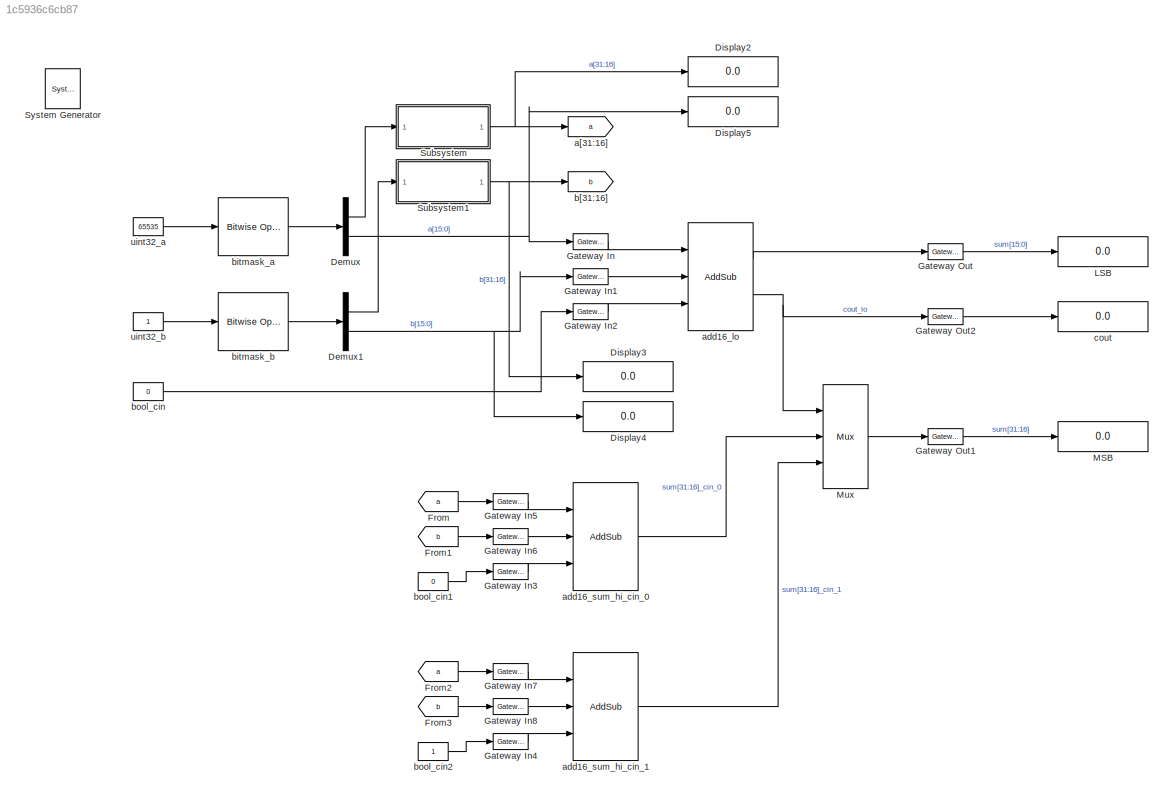
MODEL slx_1c5936c6cb87
KIND model
CONFIG AbsTol = auto
CONFIG EnableMultiTasking = off
CONFIG FixedStep = 0.001
CONFIG MaxStep = auto
CONFIG MinStep = auto
CONFIG PostLoadFcn = , if any(exist('dsrtsu_mdlpostloadfcn', 'file') == [2, 3, 6]), try dsrtsu_mdlpostloadfcn('Execute', bdroot); catch fprintf('Error in PostLoadFcn (dsrtsu_mdlpostloadfcn) for model "%s":\n %s\n', bdroot, lasterr); end, end, \n
CONFIG RelTol = 1e-3
CONFIG SampleTimeConstraint = Unconstrained
CONFIG Solver = ode45
CONFIG SolverName = ode45
CONFIG StartTime = 0.0
CONFIG StopTime = 1000e-9
BLOCK [Reference]  System Generator  REF=xbsIndex_r4/ System Generator
  AttributesFormatString = System\nGenerator
  Ports = []
  SourceBlock = xbsIndex_r4/ System Generator
  SourceType = Xilinx System Generator Block
  Tag = genX
  UserDataPersistent = on
BLOCK [Demux] Demux
  DisplayOption = bar
  Outputs = 2
  Ports = [1, 2]
BLOCK [Demux] Demux1
  DisplayOption = bar
  Outputs = 2
  Ports = [1, 2]
BLOCK [Display] Display2
  Decimation = 1
  Format = long
  Ports = [1]
BLOCK [Display] Display3
  Decimation = 1
  Ports = [1]
BLOCK [Display] Display4
  Decimation = 1
  Ports = [1]
BLOCK [Display] Display5
  Decimation = 1
  Format = long
  Ports = [1]
BLOCK [From] From
  GotoTag = a
BLOCK [From] From1
  GotoTag = b
BLOCK [From] From2
  GotoTag = a
BLOCK [From] From3
  GotoTag = b
BLOCK [Reference] Gateway In  REF=xbsIndex_r4/Gateway In
  Ports = [1, 1]
  SourceBlock = xbsIndex_r4/Gateway In
  SourceType = Xilinx Gateway In Block
BLOCK [Reference] Gateway In1  REF=xbsIndex_r4/Gateway In
  Ports = [1, 1]
  SourceBlock = xbsIndex_r4/Gateway In
  SourceType = Xilinx Gateway In Block
BLOCK [Reference] Gateway In2  REF=xbsIndex_r4/Gateway In
  Ports = [1, 1]
  SourceBlock = xbsIndex_r4/Gateway In
  SourceType = Xilinx Gateway In Block
BLOCK [Reference] Gateway In3  REF=xbsIndex_r4/Gateway In
  Ports = [1, 1]
  SourceBlock = xbsIndex_r4/Gateway In
  SourceType = Xilinx Gateway In Block
BLOCK [Reference] Gateway In4  REF=xbsIndex_r4/Gateway In
  Ports = [1, 1]
  SourceBlock = xbsIndex_r4/Gateway In
  SourceType = Xilinx Gateway In Block
BLOCK [Reference] Gateway In5  REF=xbsIndex_r4/Gateway In
  Ports = [1, 1]
  SourceBlock = xbsIndex_r4/Gateway In
  SourceType = Xilinx Gateway In Block
BLOCK [Reference] Gateway In6  REF=xbsIndex_r4/Gateway In
  Ports = [1, 1]
  SourceBlock = xbsIndex_r4/Gateway In
  SourceType = Xilinx Gateway In Block
BLOCK [Reference] Gateway In7  REF=xbsIndex_r4/Gateway In
  Ports = [1, 1]
  SourceBlock = xbsIndex_r4/Gateway In
  SourceType = Xilinx Gateway In Block
BLOCK [Reference] Gateway In8  REF=xbsIndex_r4/Gateway In
  Ports = [1, 1]
  SourceBlock = xbsIndex_r4/Gateway In
  SourceType = Xilinx Gateway In Block
BLOCK [Reference] Gateway Out  REF=xbsIndex_r4/Gateway Out
  Ports = [1, 1]
  SourceBlock = xbsIndex_r4/Gateway Out
  SourceType = Xilinx Gateway Out Block
BLOCK [Reference] Gateway Out1  REF=xbsIndex_r4/Gateway Out
  Ports = [1, 1]
  SourceBlock = xbsIndex_r4/Gateway Out
  SourceType = Xilinx Gateway Out Block
BLOCK [Reference] Gateway Out2  REF=xbsIndex_r4/Gateway Out
  Ports = [1, 1]
  SourceBlock = xbsIndex_r4/Gateway Out
  SourceType = Xilinx Gateway Out Block
BLOCK [Display] LSB
  Decimation = 1
  Format = hex (Stored Integer)
  Ports = [1]
BLOCK [Display] MSB
  Decimation = 1
  Format = hex (Stored Integer)
  Ports = [1]
BLOCK [Reference] Mux  REF=xbsIndex_r4/Mux
  Ports = [3, 1]
  SourceBlock = xbsIndex_r4/Mux
  SourceType = Xilinx Bus Multiplexer Block
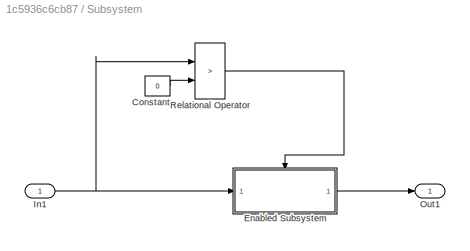
BLOCK [SubSystem] Subsystem
  Ports = [1, 1]
  RequestExecContextInheritance = off
  Variant = off
BLOCK [Constant] Subsystem/Constant
  Value = 0
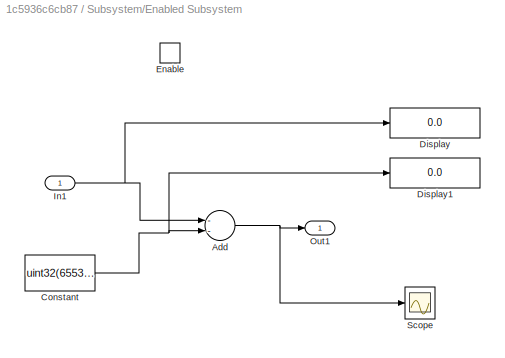
BLOCK [SubSystem] Subsystem/Enabled Subsystem
  Ports = [1, 1, 1]
  RequestExecContextInheritance = off
  TreatAsAtomicUnit = on
  Variant = off
BLOCK [Sum] Subsystem/Enabled Subsystem/Add
  InputSameDT = off
  Inputs = --
  OutDataTypeStr = uint16
  Ports = [2, 1]
  SaturateOnIntegerOverflow = off
BLOCK [Constant] Subsystem/Enabled Subsystem/Constant
  OutDataTypeStr = uint32
  Value = uint32(65535)
BLOCK [Display] Subsystem/Enabled Subsystem/Display
  Decimation = 1
  Format = long
  Ports = [1]
BLOCK [Display] Subsystem/Enabled Subsystem/Display1
  Decimation = 1
  Format = long
  Ports = [1]
BLOCK [EnablePort] Subsystem/Enabled Subsystem/Enable
  Ports = []
BLOCK [Inport] Subsystem/Enabled Subsystem/In1
  IconDisplay = Port number
BLOCK [Outport] Subsystem/Enabled Subsystem/Out1
  IconDisplay = Port number
BLOCK [Scope] Subsystem/Enabled Subsystem/Scope
  NumInputPorts = 1
  Ports = [1]
  ScopeSpecificationString = Simulink.scopes.TimeScopeBlockCfg('CurrentConfiguration', extmgr.ConfigurationSet(extmgr.Configuration('Core','General UI',true),extmgr.Configuration('Core','Source UI',true),extmgr.Configuration('Sources','WiredSimulink',true,'DataLoggingVariableName','ScopeData1'),extmgr.Configuration('Visuals','Time Domain',true,'SerializedDisplays',{struct('MinYLimReal','0.9','MaxYLimReal','1.1','YLabelReal','...<+1384ch>
BLOCK [Inport] Subsystem/In1
  IconDisplay = Port number
BLOCK [Outport] Subsystem/Out1
  IconDisplay = Port number
BLOCK [RelationalOperator] Subsystem/Relational Operator
  InputSameDT = off
  Operator = >
  OutDataTypeStr = boolean
  Ports = [2, 1]
  RndMeth = Simplest
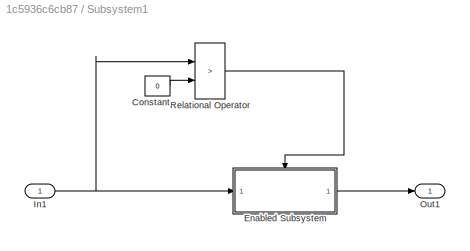
BLOCK [SubSystem] Subsystem1
  Ports = [1, 1]
  RequestExecContextInheritance = off
  Variant = off
BLOCK [Constant] Subsystem1/Constant
  Value = 0
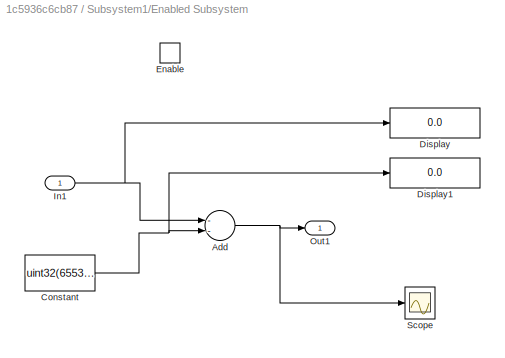
BLOCK [SubSystem] Subsystem1/Enabled Subsystem
  Ports = [1, 1, 1]
  RequestExecContextInheritance = off
  TreatAsAtomicUnit = on
  Variant = off
BLOCK [Sum] Subsystem1/Enabled Subsystem/Add
  InputSameDT = off
  Inputs = --
  OutDataTypeStr = uint16
  Ports = [2, 1]
  SaturateOnIntegerOverflow = off
BLOCK [Constant] Subsystem1/Enabled Subsystem/Constant
  OutDataTypeStr = uint32
  Value = uint32(65535)
BLOCK [Display] Subsystem1/Enabled Subsystem/Display
  Decimation = 1
  Format = long
  Ports = [1]
BLOCK [Display] Subsystem1/Enabled Subsystem/Display1
  Decimation = 1
  Format = long
  Ports = [1]
BLOCK [EnablePort] Subsystem1/Enabled Subsystem/Enable
  Ports = []
BLOCK [Inport] Subsystem1/Enabled Subsystem/In1
  IconDisplay = Port number
BLOCK [Outport] Subsystem1/Enabled Subsystem/Out1
  IconDisplay = Port number
BLOCK [Scope] Subsystem1/Enabled Subsystem/Scope
  NumInputPorts = 1
  Ports = [1]
  ScopeSpecificationString = Simulink.scopes.TimeScopeBlockCfg('CurrentConfiguration', extmgr.ConfigurationSet(extmgr.Configuration('Core','General UI',true),extmgr.Configuration('Core','Source UI',true),extmgr.Configuration('Sources','WiredSimulink',true,'DataLoggingVariableName','ScopeData1'),extmgr.Configuration('Visuals','Time Domain',true,'SerializedDisplays',{struct('MinYLimReal','0.9','MaxYLimReal','1.1','YLabelReal','...<+1380ch>
BLOCK [Inport] Subsystem1/In1
  IconDisplay = Port number
BLOCK [Outport] Subsystem1/Out1
  IconDisplay = Port number
BLOCK [RelationalOperator] Subsystem1/Relational Operator
  InputSameDT = off
  Operator = >
  OutDataTypeStr = boolean
  Ports = [2, 1]
  RndMeth = Simplest
BLOCK [Goto] a[31:16]
  GotoTag = a
BLOCK [Reference] add16_lo  REF=xbsIndex_r4/AddSub
  Ports = [3, 2]
  SourceBlock = xbsIndex_r4/AddSub
  SourceType = Xilinx Adder/Subtracter Block
BLOCK [Reference] add16_sum_hi_cin_0  REF=xbsIndex_r4/AddSub
  Ports = [3, 1]
  SourceBlock = xbsIndex_r4/AddSub
  SourceType = Xilinx Adder/Subtracter Block
BLOCK [Reference] add16_sum_hi_cin_1  REF=xbsIndex_r4/AddSub
  Ports = [3, 1]
  SourceBlock = xbsIndex_r4/AddSub
  SourceType = Xilinx Adder/Subtracter Block
BLOCK [Goto] b[31:16]
  GotoTag = b
BLOCK [Reference] bitmask_a  REF=simulink/Logic and Bit
Operations/Bitwise
Operator
  Ports = [1, 1]
  SourceBlock = simulink/Logic and Bit\nOperations/Bitwise\nOperator
  SourceProductBaseCode = SL
  SourceProductName = Simulink
  SourceType = Bitwise Operator
BLOCK [Reference] bitmask_b  REF=simulink/Logic and Bit
Operations/Bitwise
Operator
  Ports = [1, 1]
  SourceBlock = simulink/Logic and Bit\nOperations/Bitwise\nOperator
  SourceProductBaseCode = SL
  SourceProductName = Simulink
  SourceType = Bitwise Operator
BLOCK [Constant] bool_cin
  OutDataTypeStr = boolean
  Value = 0
BLOCK [Constant] bool_cin1
  OutDataTypeStr = boolean
  Value = 0
BLOCK [Constant] bool_cin2
  OutDataTypeStr = boolean
BLOCK [Display] cout
  Decimation = 1
  Format = long
  Ports = [1]
BLOCK [Constant] uint32_a
  OutDataTypeStr = uint32
  Value = 65535
BLOCK [Constant] uint32_b
  OutDataTypeStr = uint32
LINE Demux1:1 -> Subsystem1:1
NET Demux1:2 -> Display4:1, Gateway In1:1
LINE Demux:1 -> Subsystem:1
NET Demux:2 -> Display5:1, Gateway In:1
LINE From1:1 -> Gateway In6:1
LINE From2:1 -> Gateway In7:1
LINE From3:1 -> Gateway In8:1
LINE From:1 -> Gateway In5:1
LINE Gateway In1:1 -> add16_lo:2
LINE Gateway In2:1 -> add16_lo:3
LINE Gateway In3:1 -> add16_sum_hi_cin_0:3
LINE Gateway In4:1 -> add16_sum_hi_cin_1:3
LINE Gateway In5:1 -> add16_sum_hi_cin_0:1
LINE Gateway In6:1 -> add16_sum_hi_cin_0:2
LINE Gateway In7:1 -> add16_sum_hi_cin_1:1
LINE Gateway In8:1 -> add16_sum_hi_cin_1:2
LINE Gateway In:1 -> add16_lo:1
LINE Gateway Out1:1 -> MSB:1
LINE Gateway Out2:1 -> cout:1
LINE Gateway Out:1 -> LSB:1
LINE Mux:1 -> Gateway Out1:1
LINE Subsystem/Constant:1 -> Subsystem/Relational Operator:2
NET Subsystem/Enabled Subsystem/Add:1 -> Subsystem/Enabled Subsystem/Out1:1, Subsystem/Enabled Subsystem/Scope:1
NET Subsystem/Enabled Subsystem/Constant:1 -> Subsystem/Enabled Subsystem/Add:2, Subsystem/Enabled Subsystem/Display1:1
NET Subsystem/Enabled Subsystem/In1:1 -> Subsystem/Enabled Subsystem/Add:1, Subsystem/Enabled Subsystem/Display:1
LINE Subsystem/Enabled Subsystem:1 -> Subsystem/Out1:1
NET Subsystem/In1:1 -> Subsystem/Enabled Subsystem:1, Subsystem/Relational Operator:1
LINE Subsystem/Relational Operator:1 -> Subsystem/Enabled Subsystem:enable
LINE Subsystem1/Constant:1 -> Subsystem1/Relational Operator:2
NET Subsystem1/Enabled Subsystem/Add:1 -> Subsystem1/Enabled Subsystem/Out1:1, Subsystem1/Enabled Subsystem/Scope:1
NET Subsystem1/Enabled Subsystem/Constant:1 -> Subsystem1/Enabled Subsystem/Add:2, Subsystem1/Enabled Subsystem/Display1:1
NET Subsystem1/Enabled Subsystem/In1:1 -> Subsystem1/Enabled Subsystem/Add:1, Subsystem1/Enabled Subsystem/Display:1
LINE Subsystem1/Enabled Subsystem:1 -> Subsystem1/Out1:1
NET Subsystem1/In1:1 -> Subsystem1/Enabled Subsystem:1, Subsystem1/Relational Operator:1
LINE Subsystem1/Relational Operator:1 -> Subsystem1/Enabled Subsystem:enable
NET Subsystem1:1 -> Display3:1, b[31:16]:1
NET Subsystem:1 -> Display2:1, a[31:16]:1
LINE add16_lo:1 -> Gateway Out:1
NET add16_lo:2 -> Gateway Out2:1, Mux:1
LINE add16_sum_hi_cin_0:1 -> Mux:2
LINE add16_sum_hi_cin_1:1 -> Mux:3
LINE bitmask_a:1 -> Demux:1
LINE bitmask_b:1 -> Demux1:1
LINE bool_cin1:1 -> Gateway In3:1
LINE bool_cin2:1 -> Gateway In4:1
LINE bool_cin:1 -> Gateway In2:1
LINE uint32_a:1 -> bitmask_a:1
LINE uint32_b:1 -> bitmask_b:1
note: NET lines group one-source signal fan-out (src -> all destinations, sorted); 1:1 wires keep LINE
